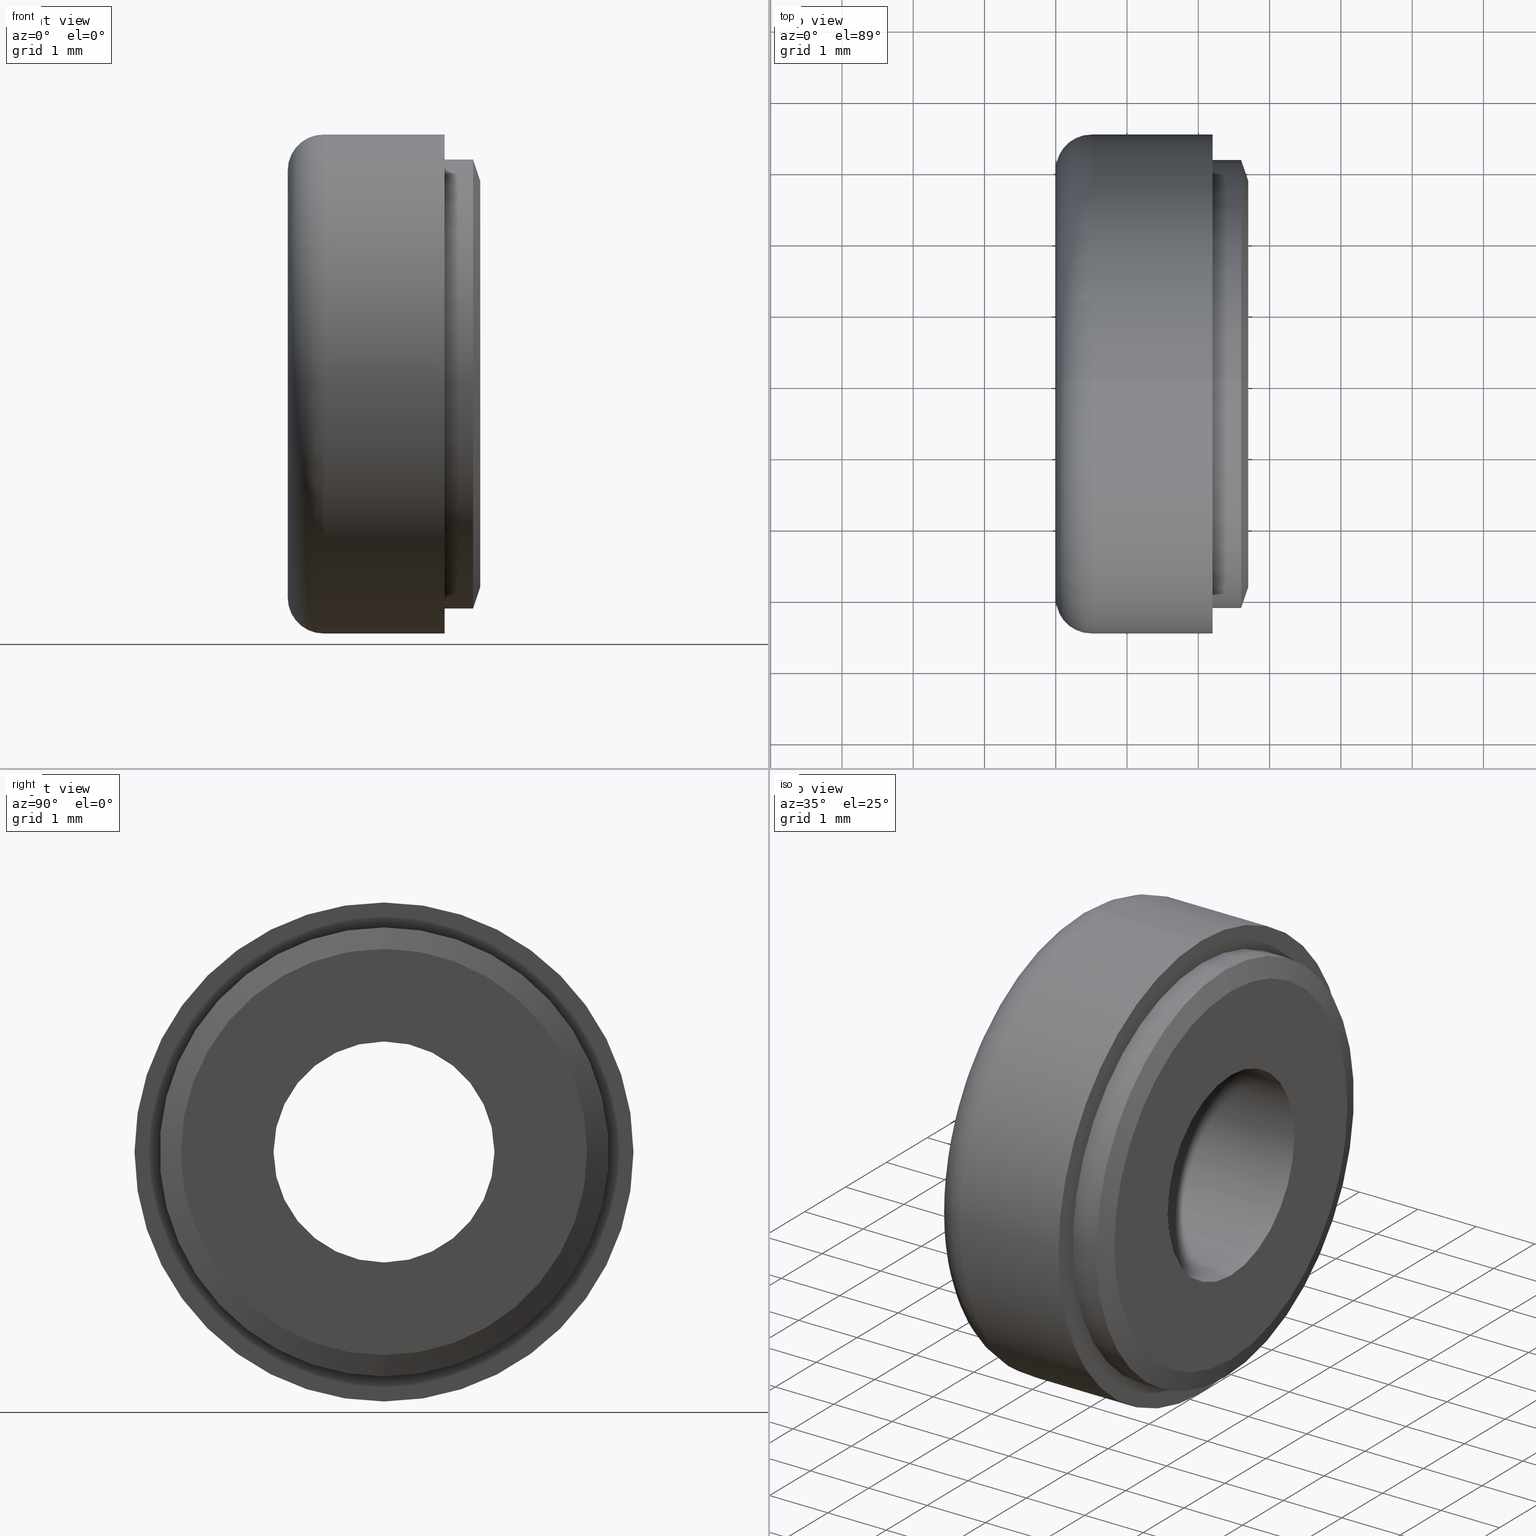
[diagram: canonical four-view strip — front | top / right | iso, engineering-drawing reading convention]
A machine part, canonical four-view strip (front | top / right | iso — engineering-drawing reading convention). The complete STEP part file that produces these views, byte-faithful:
ISO-10303-21;
HEADER;
FILE_DESCRIPTION (( 'STEP AP214' ),
    '1' );
FILE_NAME ('TL_421_M3.STEP',
    '2016-01-25T00:41:06',
    ( '' ),
    ( '' ),
    'SwSTEP 2.0',
    'SolidWorks 2015',
    '' );
FILE_SCHEMA (( 'AUTOMOTIVE_DESIGN' ));
ENDSEC;

DATA;
#1 = APPLICATION_CONTEXT ( 'automotive_design' ) ;
#2 = FACE_OUTER_BOUND ( 'NONE', #348, .T. ) ;
#3 = EDGE_CURVE ( 'NONE', #192, #632, #313, .T. ) ;
#4 = EDGE_CURVE ( 'NONE', #118, #221, #40, .T. ) ;
#5 = EDGE_LOOP ( 'NONE', ( #64, #252, #193, #17 ) ) ;
#6 = AXIS2_PLACEMENT_3D ( 'NONE', #727, #172, #646 ) ;
#7 = CARTESIAN_POINT ( 'NONE',  ( 2.200000000000000200, 4.286263797015736600E-016, -3.500000000000000000 ) ) ;
#8 = EDGE_LOOP ( 'NONE', ( #415, #104 ) ) ;
#9 = FILL_AREA_STYLE_COLOUR ( '', #62 ) ;
#10 = PLANE ( 'NONE',  #467 ) ;
#11 = DIRECTION ( 'NONE',  ( -1.000000000000000000, -0.0000000000000000000, -0.0000000000000000000 ) ) ;
#12 = FACE_OUTER_BOUND ( 'NONE', #285, .T. ) ;
#13 = PRESENTATION_LAYER_ASSIGNMENT (  '', '', ( #709 ) ) ;
#14 = CARTESIAN_POINT ( 'NONE',  ( -0.1100000000000000700, 0.0000000000000000000, 0.0000000000000000000 ) ) ;
#15 = EDGE_LOOP ( 'NONE', ( #245, #140 ) ) ;
#16 = FACE_OUTER_BOUND ( 'NONE', #22, .T. ) ;
#17 = ORIENTED_EDGE ( 'NONE', *, *, #532, .F. ) ;
#18 = ORIENTED_EDGE ( 'NONE', *, *, #687, .F. ) ;
#19 = CARTESIAN_POINT ( 'NONE',  ( 0.0000000000000000000, 0.0000000000000000000, 0.0000000000000000000 ) ) ;
#20 = PRODUCT_RELATED_PRODUCT_CATEGORY ( 'part', '', ( #429 ) ) ;
#21 = CARTESIAN_POINT ( 'NONE',  ( 2.200000000000000200, 0.0000000000000000000, 0.0000000000000000000 ) ) ;
#22 = EDGE_LOOP ( 'NONE', ( #485, #431, #614, #658 ) ) ;
#23 = DIRECTION ( 'NONE',  ( 0.0000000000000000000, 0.0000000000000000000, 1.000000000000000000 ) ) ;
#24 = DIRECTION ( 'NONE',  ( 0.0000000000000000000, 0.0000000000000000000, 1.000000000000000000 ) ) ;
#25 = AXIS2_PLACEMENT_3D ( 'NONE', #452, #110, #609 ) ;
#26 = ORIENTED_EDGE ( 'NONE', *, *, #599, .F. ) ;
#27 = CARTESIAN_POINT ( 'NONE',  ( 2.168404344971008900E-016, 0.0000000000000000000, 0.0000000000000000000 ) ) ;
#28 = EDGE_CURVE ( 'NONE', #357, #106, #135, .T. ) ;
#29 = ADVANCED_FACE ( 'NONE', ( #623 ), #287, .T. ) ;
#30 = FILL_AREA_STYLE_COLOUR ( '', #471 ) ;
#31 = ADVANCED_FACE ( 'NONE', ( #332 ), #43, .T. ) ;
#32 = CARTESIAN_POINT ( 'NONE',  ( 2.200000000000000600, 1.898202538678397700E-016, -1.550000000000000300 ) ) ;
#33 = FACE_BOUND ( 'NONE', #337, .T. ) ;
#34 = MECHANICAL_DESIGN_GEOMETRIC_PRESENTATION_REPRESENTATION (  '', ( #697 ), #75 ) ;
#35 = ORIENTED_EDGE ( 'NONE', *, *, #456, .F. ) ;
#36 = ADVANCED_FACE ( 'NONE', ( #16 ), #262, .F. ) ;
#37 = EDGE_LOOP ( 'NONE', ( #238, #411, #321, #681 ) ) ;
#38 = EDGE_CURVE ( 'NONE', #630, #434, #161, .T. ) ;
#39 = AXIS2_PLACEMENT_3D ( 'NONE', #676, #168, #260 ) ;
#40 = LINE ( 'NONE', #475, #663 ) ;
#41 = ORIENTED_EDGE ( 'NONE', *, *, #342, .T. ) ;
#42 = ORIENTED_EDGE ( 'NONE', *, *, #700, .T. ) ;
#43 = TOROIDAL_SURFACE ( 'NONE', #430, 3.000000000000000000, 0.5000000000000000000 ) ;
#44 = CIRCLE ( 'NONE', #568, 2.999999999999999600 ) ;
#45 = FILL_AREA_STYLE ('',( #378 ) ) ;
#46 =( NAMED_UNIT ( * ) SI_UNIT ( $, .STERADIAN. ) SOLID_ANGLE_UNIT ( ) );
#47 = MECHANICAL_DESIGN_GEOMETRIC_PRESENTATION_REPRESENTATION (  '', ( #709 ), #88 ) ;
#48 = ORIENTED_EDGE ( 'NONE', *, *, #340, .F. ) ;
#49 = FACE_OUTER_BOUND ( 'NONE', #463, .T. ) ;
#50 =( LENGTH_UNIT ( ) NAMED_UNIT ( * ) SI_UNIT ( .MILLI., .METRE. ) );
#51 = SHAPE_REPRESENTATION ( 'washer', ( #648 ), #601 ) ;
#52 = UNCERTAINTY_MEASURE_WITH_UNIT (LENGTH_MEASURE( 1.000000000000000100E-005 ), #661, 'distance_accuracy_value', 'NONE');
#53 = APPLICATION_CONTEXT ( 'automotive_design' ) ;
#54 = DIRECTION ( 'NONE',  ( 1.000000000000000000, 0.0000000000000000000, 0.0000000000000000000 ) ) ;
#55 = EDGE_LOOP ( 'NONE', ( #26, #42, #666, #472 ) ) ;
#56 =( REPRESENTATION_RELATIONSHIP ('NONE','NONE', #339, #351 ) REPRESENTATION_RELATIONSHIP_WITH_TRANSFORMATION ( #80 )SHAPE_REPRESENTATION_RELATIONSHIP( ) );
#57 = PRODUCT_DEFINITION_FORMATION_WITH_SPECIFIED_SOURCE ( 'ANY', '', #369, .NOT_KNOWN. ) ;
#58 = UNCERTAINTY_MEASURE_WITH_UNIT (LENGTH_MEASURE( 1.000000000000000100E-005 ), #542, 'distance_accuracy_value', 'NONE');
#59 = CARTESIAN_POINT ( 'NONE',  ( -0.1100000000000000700, 0.0000000000000000000, 2.999999999999999600 ) ) ;
#60 = CIRCLE ( 'NONE', #384, 1.600000000000000100 ) ;
#61 = DIRECTION ( 'NONE',  ( -1.000000000000000000, -0.0000000000000000000, -0.0000000000000000000 ) ) ;
#62 = COLOUR_RGB ( '',0.7921568627450980000, 0.8196078431372548800, 0.9333333333333333500 ) ;
#63 = DIRECTION ( 'NONE',  ( 0.0000000000000000000, 0.0000000000000000000, -1.000000000000000000 ) ) ;
#64 = ORIENTED_EDGE ( 'NONE', *, *, #566, .F. ) ;
#65 = CARTESIAN_POINT ( 'NONE',  ( 0.0000000000000000000, 3.980102097228897700E-016, 3.000000000000000000 ) ) ;
#66 = ORIENTED_EDGE ( 'NONE', *, *, #451, .T. ) ;
#67 = PRODUCT_DEFINITION_SHAPE ( 'NONE', 'NONE',  #593 ) ;
#68 = CARTESIAN_POINT ( 'NONE',  ( 0.5000000000000000000, 0.0000000000000000000, -3.000000000000000000 ) ) ;
#69 = ORIENTED_EDGE ( 'NONE', *, *, #38, .F. ) ;
#70 = FILL_AREA_STYLE ('',( #9 ) ) ;
#71 = LINE ( 'NONE', #408, #320 ) ;
#72 = ORIENTED_EDGE ( 'NONE', *, *, #154, .T. ) ;
#73 = DIRECTION ( 'NONE',  ( 0.0000000000000000000, 0.0000000000000000000, -1.000000000000000000 ) ) ;
#74 = EDGE_LOOP ( 'NONE', ( #66, #579 ) ) ;
#75 =( GEOMETRIC_REPRESENTATION_CONTEXT ( 3 ) GLOBAL_UNCERTAINTY_ASSIGNED_CONTEXT ( ( #58 ) ) GLOBAL_UNIT_ASSIGNED_CONTEXT ( ( #542, #208, #597 ) ) REPRESENTATION_CONTEXT ( 'NONE', 'WORKASPACE' ) );
#76 = CARTESIAN_POINT ( 'NONE',  ( -0.1100000000000000700, 0.0000000000000000000, 1.550000000000000300 ) ) ;
#77 = CARTESIAN_POINT ( 'NONE',  ( 2.200000000000000600, 3.490243377569956600E-016, -2.850000000000000100 ) ) ;
#78 = DIRECTION ( 'NONE',  ( -1.000000000000000000, -0.0000000000000000000, -0.0000000000000000000 ) ) ;
#79 = AXIS2_PLACEMENT_3D ( 'NONE', #21, #175, #234 ) ;
#80 = ITEM_DEFINED_TRANSFORMATION ( 'NONE', 'NONE', #410,  #648 ) ;
#81 = FACE_OUTER_BOUND ( 'NONE', #684, .T. ) ;
#82 = FACE_BOUND ( 'NONE', #300, .T. ) ;
#83 = EDGE_CURVE ( 'NONE', #96, #198, #409, .T. ) ;
#84 = ORIENTED_EDGE ( 'NONE', *, *, #166, .F. ) ;
#85 = DIRECTION ( 'NONE',  ( 0.0000000000000000000, 0.0000000000000000000, 1.000000000000000000 ) ) ;
#86 = ADVANCED_FACE ( 'NONE', ( #379 ), #153, .F. ) ;
#87 = EDGE_LOOP ( 'NONE', ( #624, #611 ) ) ;
#88 =( GEOMETRIC_REPRESENTATION_CONTEXT ( 3 ) GLOBAL_UNCERTAINTY_ASSIGNED_CONTEXT ( ( #484 ) ) GLOBAL_UNIT_ASSIGNED_CONTEXT ( ( #126, #507, #577 ) ) REPRESENTATION_CONTEXT ( 'NONE', 'WORKASPACE' ) );
#89 = VECTOR ( 'NONE', #236, 1000.000000000000000 ) ;
#90 = PRODUCT_DEFINITION_CONTEXT ( 'detailed design', #277, 'design' ) ;
#91 = DIRECTION ( 'NONE',  ( 0.0000000000000000000, 0.0000000000000000000, 1.000000000000000000 ) ) ;
#92 = DIRECTION ( 'NONE',  ( -1.000000000000000000, -0.0000000000000000000, -0.0000000000000000000 ) ) ;
#93 = ADVANCED_FACE ( 'NONE', ( #377 ), #432, .T. ) ;
#94 = ORIENTED_EDGE ( 'NONE', *, *, #28, .F. ) ;
#95 = SHAPE_DEFINITION_REPRESENTATION ( #67, #51 ) ;
#96 = VERTEX_POINT ( 'NONE', #32 ) ;
#97 = CLOSED_SHELL ( 'NONE', ( #583, #310, #29, #36, #531, #86, #368, #303, #149, #588, #640 ) ) ;
#98 = CIRCLE ( 'NONE', #164, 3.000000000000000000 ) ;
#99 = PRODUCT_RELATED_PRODUCT_CATEGORY ( 'part', '', ( #369 ) ) ;
#100 = FACE_OUTER_BOUND ( 'NONE', #580, .T. ) ;
#101 = DIRECTION ( 'NONE',  ( 0.0000000000000000000, 0.0000000000000000000, 1.000000000000000000 ) ) ;
#102 = EDGE_CURVE ( 'NONE', #691, #178, #292, .T. ) ;
#103 = AXIS2_PLACEMENT_3D ( 'NONE', #298, #516, #511 ) ;
#104 = ORIENTED_EDGE ( 'NONE', *, *, #705, .T. ) ;
#105 = SURFACE_SIDE_STYLE ('',( #562 ) ) ;
#106 = VERTEX_POINT ( 'NONE', #683 ) ;
#107 = CYLINDRICAL_SURFACE ( 'NONE', #103, 3.000000000000000000 ) ;
#108 = ORIENTED_EDGE ( 'NONE', *, *, #405, .T. ) ;
#109 = APPLICATION_CONTEXT ( 'automotive_design' ) ;
#110 = DIRECTION ( 'NONE',  ( -1.000000000000000000, -0.0000000000000000000, -0.0000000000000000000 ) ) ;
#111 = VERTEX_POINT ( 'NONE', #112 ) ;
#112 = CARTESIAN_POINT ( 'NONE',  ( 2.100000000000001000, 3.857637417314162700E-016, -3.149999999999999900 ) ) ;
#113 = DIRECTION ( 'NONE',  ( 0.0000000000000000000, 0.0000000000000000000, 1.000000000000000000 ) ) ;
#114 =( GEOMETRIC_REPRESENTATION_CONTEXT ( 3 ) GLOBAL_UNCERTAINTY_ASSIGNED_CONTEXT ( ( #52 ) ) GLOBAL_UNIT_ASSIGNED_CONTEXT ( ( #661, #317, #46 ) ) REPRESENTATION_CONTEXT ( 'NONE', 'WORKASPACE' ) );
#115 = EDGE_LOOP ( 'NONE', ( #641, #643, #371, #84 ) ) ;
#116 = CARTESIAN_POINT ( 'NONE',  ( 0.0000000000000000000, 0.0000000000000000000, 0.0000000000000000000 ) ) ;
#117 = ORIENTED_EDGE ( 'NONE', *, *, #397, .F. ) ;
#118 = VERTEX_POINT ( 'NONE', #195 ) ;
#119 = EDGE_LOOP ( 'NONE', ( #274, #541, #530, #336 ) ) ;
#120 = LINE ( 'NONE', #133, #703 ) ;
#121 = CARTESIAN_POINT ( 'NONE',  ( 0.5000000000000000000, 1.959434878635765200E-016, -1.600000000000000100 ) ) ;
#122 = VECTOR ( 'NONE', #590, 1000.000000000000000 ) ;
#123 = AXIS2_PLACEMENT_3D ( 'NONE', #441, #521, #334 ) ;
#124 = DIRECTION ( 'NONE',  ( 0.0000000000000000000, 0.0000000000000000000, -1.000000000000000000 ) ) ;
#125 = DIRECTION ( 'NONE',  ( 0.0000000000000000000, 0.0000000000000000000, 1.000000000000000000 ) ) ;
#126 =( LENGTH_UNIT ( ) NAMED_UNIT ( * ) SI_UNIT ( .MILLI., .METRE. ) );
#127 = DIRECTION ( 'NONE',  ( 1.000000000000000000, 0.0000000000000000000, 0.0000000000000000000 ) ) ;
#128 = PLANE ( 'NONE',  #143 ) ;
#129 = VECTOR ( 'NONE', #631, 1000.000000000000000 ) ;
#130 = AXIS2_PLACEMENT_3D ( 'NONE', #589, #61, #125 ) ;
#131 = ORIENTED_EDGE ( 'NONE', *, *, #102, .T. ) ;
#132 = CARTESIAN_POINT ( 'NONE',  ( 2.200000000000000600, 0.0000000000000000000, 0.0000000000000000000 ) ) ;
#133 = CARTESIAN_POINT ( 'NONE',  ( 2.200000000000000200, 3.673940397442059900E-016, -3.000000000000000000 ) ) ;
#134 = DIRECTION ( 'NONE',  ( 0.0000000000000000000, 0.0000000000000000000, 1.000000000000000000 ) ) ;
#135 = CIRCLE ( 'NONE', #502, 3.000000000000000000 ) ;
#136 = FACE_OUTER_BOUND ( 'NONE', #664, .T. ) ;
#137 = PRODUCT_DEFINITION_FORMATION_WITH_SPECIFIED_SOURCE ( 'ANY', '', #311, .NOT_KNOWN. ) ;
#138 = UNCERTAINTY_MEASURE_WITH_UNIT (LENGTH_MEASURE( 1.000000000000000100E-005 ), #267, 'distance_accuracy_value', 'NONE');
#139 = PRODUCT_DEFINITION_CONTEXT ( 'detailed design', #606, 'design' ) ;
#140 = ORIENTED_EDGE ( 'NONE', *, *, #487, .F. ) ;
#141 = CARTESIAN_POINT ( 'NONE',  ( 0.0000000000000000000, 0.0000000000000000000, 0.0000000000000000000 ) ) ;
#142 = ORIENTED_EDGE ( 'NONE', *, *, #405, .F. ) ;
#143 = AXIS2_PLACEMENT_3D ( 'NONE', #578, #329, #225 ) ;
#144 = ADVANCED_FACE ( 'NONE', ( #2 ), #555, .F. ) ;
#145 = ORIENTED_EDGE ( 'NONE', *, *, #156, .F. ) ;
#146 = CIRCLE ( 'NONE', #636, 3.149999999999999900 ) ;
#147 = DIRECTION ( 'NONE',  ( 0.0000000000000000000, 0.0000000000000000000, -1.000000000000000000 ) ) ;
#148 = ORIENTED_EDGE ( 'NONE', *, *, #599, .T. ) ;
#149 = ADVANCED_FACE ( 'NONE', ( #136 ), #257, .T. ) ;
#150 =( LENGTH_UNIT ( ) NAMED_UNIT ( * ) SI_UNIT ( .MILLI., .METRE. ) );
#151 = DIRECTION ( 'NONE',  ( 0.0000000000000000000, 0.0000000000000000000, -1.000000000000000000 ) ) ;
#152 = STYLED_ITEM ( 'NONE', ( #182 ), #721 ) ;
#153 = CYLINDRICAL_SURFACE ( 'NONE', #605, 1.550000000000000300 ) ;
#154 = EDGE_CURVE ( 'NONE', #649, #272, #414, .T. ) ;
#155 = AXIS2_PLACEMENT_3D ( 'NONE', #650, #173, #134 ) ;
#156 = EDGE_CURVE ( 'NONE', #185, #357, #715, .T. ) ;
#157 = DIRECTION ( 'NONE',  ( -0.3162277660168362200, 0.0000000000000000000, 0.9486832980505144300 ) ) ;
#158 = PRODUCT_DEFINITION_CONTEXT ( 'detailed design', #109, 'design' ) ;
#159 = ORIENTED_EDGE ( 'NONE', *, *, #258, .F. ) ;
#160 = FACE_OUTER_BOUND ( 'NONE', #55, .T. ) ;
#161 = CIRCLE ( 'NONE', #458, 3.000000000000000000 ) ;
#162 = APPLICATION_PROTOCOL_DEFINITION ( 'draft international standard', 'automotive_design', 1998, #325 ) ;
#163 = FILL_AREA_STYLE ('',( #486 ) ) ;
#164 = AXIS2_PLACEMENT_3D ( 'NONE', #464, #191, #581 ) ;
#165 = CARTESIAN_POINT ( 'NONE',  ( 0.0000000000000000000, 0.0000000000000000000, 2.999999999999999600 ) ) ;
#166 = EDGE_CURVE ( 'NONE', #632, #691, #572, .T. ) ;
#167 = UNCERTAINTY_MEASURE_WITH_UNIT (LENGTH_MEASURE( 1.000000000000000100E-005 ), #150, 'distance_accuracy_value', 'NONE');
#168 = DIRECTION ( 'NONE',  ( -1.000000000000000000, -0.0000000000000000000, -0.0000000000000000000 ) ) ;
#169 = CARTESIAN_POINT ( 'NONE',  ( 0.0000000000000000000, 0.0000000000000000000, 0.0000000000000000000 ) ) ;
#170 = SURFACE_STYLE_USAGE ( .BOTH. , #613 ) ;
#171 = SURFACE_STYLE_FILL_AREA ( #448 ) ;
#172 = DIRECTION ( 'NONE',  ( -1.000000000000000000, 0.0000000000000000000, 0.0000000000000000000 ) ) ;
#173 = DIRECTION ( 'NONE',  ( -1.000000000000000000, -0.0000000000000000000, -0.0000000000000000000 ) ) ;
#174 = APPLICATION_PROTOCOL_DEFINITION ( 'draft international standard', 'automotive_design', 1998, #1 ) ;
#175 = DIRECTION ( 'NONE',  ( 1.000000000000000000, 0.0000000000000000000, 0.0000000000000000000 ) ) ;
#176 = PRODUCT_RELATED_PRODUCT_CATEGORY ( 'part', '', ( #311 ) ) ;
#177 = DIRECTION ( 'NONE',  ( 1.000000000000000000, 0.0000000000000000000, 0.0000000000000000000 ) ) ;
#178 = VERTEX_POINT ( 'NONE', #222 ) ;
#179 = AXIS2_PLACEMENT_3D ( 'NONE', #68, #327, #73 ) ;
#180 = EDGE_CURVE ( 'NONE', #111, #632, #704, .T. ) ;
#181 = DIRECTION ( 'NONE',  ( 0.0000000000000000000, 0.0000000000000000000, 1.000000000000000000 ) ) ;
#182 = PRESENTATION_STYLE_ASSIGNMENT (( #209 ) ) ;
#183 = FACE_BOUND ( 'NONE', #552, .T. ) ;
#184 = CARTESIAN_POINT ( 'NONE',  ( 2.200000000000000200, 4.286263797015736600E-016, -3.500000000000000000 ) ) ;
#185 = VERTEX_POINT ( 'NONE', #251 ) ;
#186 = PRESENTATION_LAYER_ASSIGNMENT (  '', '', ( #152 ) ) ;
#187 = DIRECTION ( 'NONE',  ( -1.000000000000000000, -0.0000000000000000000, -0.0000000000000000000 ) ) ;
#188 = STYLED_ITEM ( 'NONE', ( #505 ), #264 ) ;
#189 = DIRECTION ( 'NONE',  ( -1.000000000000000000, -0.0000000000000000000, -0.0000000000000000000 ) ) ;
#190 = CIRCLE ( 'NONE', #490, 2.850000000000000100 ) ;
#191 = DIRECTION ( 'NONE',  ( 1.000000000000000000, 0.0000000000000000000, 0.0000000000000000000 ) ) ;
#192 = VERTEX_POINT ( 'NONE', #604 ) ;
#193 = ORIENTED_EDGE ( 'NONE', *, *, #156, .T. ) ;
#194 = EDGE_CURVE ( 'NONE', #732, #272, #396, .T. ) ;
#195 = CARTESIAN_POINT ( 'NONE',  ( 0.5000000000000000000, 0.0000000000000000000, 1.600000000000000100 ) ) ;
#196 = CARTESIAN_POINT ( 'NONE',  ( 2.200000000000000200, 0.0000000000000000000, 0.0000000000000000000 ) ) ;
#197 = LINE ( 'NONE', #184, #625 ) ;
#198 = VERTEX_POINT ( 'NONE', #686 ) ;
#199 =( NAMED_UNIT ( * ) SI_UNIT ( $, .STERADIAN. ) SOLID_ANGLE_UNIT ( ) );
#200 = ADVANCED_FACE ( 'NONE', ( #100 ), #223, .T. ) ;
#201 = EDGE_LOOP ( 'NONE', ( #594, #571 ) ) ;
#202 = CIRCLE ( 'NONE', #306, 1.550000000000000000 ) ;
#203 = ORIENTED_EDGE ( 'NONE', *, *, #567, .F. ) ;
#204 = SURFACE_STYLE_FILL_AREA ( #70 ) ;
#205 = ORIENTED_EDGE ( 'NONE', *, *, #426, .T. ) ;
#206 = AXIS2_PLACEMENT_3D ( 'NONE', #457, #54, #399 ) ;
#207 = PRODUCT_DEFINITION_SHAPE ( 'NONE', 'NONE',  #734 ) ;
#208 =( NAMED_UNIT ( * ) PLANE_ANGLE_UNIT ( ) SI_UNIT ( $, .RADIAN. ) );
#209 = SURFACE_STYLE_USAGE ( .BOTH. , #545 ) ;
#210 = PRODUCT_DEFINITION_SHAPE ( 'NONE', 'NONE',  #554 ) ;
#211 = VECTOR ( 'NONE', #189, 1000.000000000000000 ) ;
#212 = DIRECTION ( 'NONE',  ( -1.000000000000000000, -0.0000000000000000000, -0.0000000000000000000 ) ) ;
#213 = DIRECTION ( 'NONE',  ( -1.000000000000000000, -0.0000000000000000000, -0.0000000000000000000 ) ) ;
#214 = DIRECTION ( 'NONE',  ( 1.000000000000000000, 0.0000000000000000000, 0.0000000000000000000 ) ) ;
#215 = MECHANICAL_DESIGN_GEOMETRIC_PRESENTATION_REPRESENTATION (  '', ( #152 ), #254 ) ;
#216 = PRODUCT_CONTEXT ( 'NONE', #1, 'mechanical' ) ;
#217 = CARTESIAN_POINT ( 'NONE',  ( 2.200000000000000200, 0.0000000000000000000, 0.0000000000000000000 ) ) ;
#218 = EDGE_CURVE ( 'NONE', #526, #228, #275, .T. ) ;
#219 = CONTEXT_DEPENDENT_SHAPE_REPRESENTATION ( #328, #465 ) ;
#220 = LINE ( 'NONE', #77, #654 ) ;
#221 = VERTEX_POINT ( 'NONE', #382 ) ;
#222 = CARTESIAN_POINT ( 'NONE',  ( 1.700000000000000000, 3.857637417314162700E-016, -3.149999999999999900 ) ) ;
#223 = CYLINDRICAL_SURFACE ( 'NONE', #155, 3.500000000000000000 ) ;
#224 = DIRECTION ( 'NONE',  ( -1.000000000000000000, -0.0000000000000000000, -0.0000000000000000000 ) ) ;
#225 = DIRECTION ( 'NONE',  ( -0.0000000000000000000, 0.0000000000000000000, 1.000000000000000000 ) ) ;
#226 = CARTESIAN_POINT ( 'NONE',  ( 0.5000000000000000000, 0.0000000000000000000, 0.0000000000000000000 ) ) ;
#227 = DIRECTION ( 'NONE',  ( 0.0000000000000000000, 0.0000000000000000000, -1.000000000000000000 ) ) ;
#228 = VERTEX_POINT ( 'NONE', #335 ) ;
#229 = DIRECTION ( 'NONE',  ( -1.000000000000000000, -0.0000000000000000000, -0.0000000000000000000 ) ) ;
#230 = EDGE_CURVE ( 'NONE', #518, #185, #375, .T. ) ;
#231 = PLANE ( 'NONE',  #295 ) ;
#232 = CIRCLE ( 'NONE', #243, 0.5000000000000000000 ) ;
#233 = AXIS2_PLACEMENT_3D ( 'NONE', #473, #689, #23 ) ;
#234 = DIRECTION ( 'NONE',  ( 0.0000000000000000000, 0.0000000000000000000, -1.000000000000000000 ) ) ;
#235 = CARTESIAN_POINT ( 'NONE',  ( 1.700000000000000000, 0.0000000000000000000, 0.0000000000000000000 ) ) ;
#236 = DIRECTION ( 'NONE',  ( -1.000000000000000000, -0.0000000000000000000, -0.0000000000000000000 ) ) ;
#237 = SHAPE_DEFINITION_REPRESENTATION ( #210, #351 ) ;
#238 = ORIENTED_EDGE ( 'NONE', *, *, #576, .F. ) ;
#239 = VECTOR ( 'NONE', #520, 1000.000000000000000 ) ;
#240 = CARTESIAN_POINT ( 'NONE',  ( 2.100000000000001000, 0.0000000000000000000, 0.0000000000000000000 ) ) ;
#241 = FACE_OUTER_BOUND ( 'NONE', #447, .T. ) ;
#242 = CARTESIAN_POINT ( 'NONE',  ( 1.700000000000000000, 3.673940397442059400E-016, -2.999999999999999600 ) ) ;
#243 = AXIS2_PLACEMENT_3D ( 'NONE', #420, #341, #517 ) ;
#244 = ADVANCED_FACE ( 'NONE', ( #241 ), #354, .F. ) ;
#245 = ORIENTED_EDGE ( 'NONE', *, *, #381, .F. ) ;
#246 = CIRCLE ( 'NONE', #206, 3.500000000000000000 ) ;
#247 = CARTESIAN_POINT ( 'NONE',  ( 1.700000000000000000, 0.0000000000000000000, 3.149999999999999900 ) ) ;
#248 = DIRECTION ( 'NONE',  ( 1.000000000000000000, 0.0000000000000000000, 0.0000000000000000000 ) ) ;
#249 = ADVANCED_FACE ( 'NONE', ( #82, #656 ), #231, .T. ) ;
#250 = DIRECTION ( 'NONE',  ( 0.0000000000000000000, 0.0000000000000000000, -1.000000000000000000 ) ) ;
#251 = CARTESIAN_POINT ( 'NONE',  ( 2.200000000000000200, 0.0000000000000000000, 3.000000000000000000 ) ) ;
#252 = ORIENTED_EDGE ( 'NONE', *, *, #230, .T. ) ;
#253 = ADVANCED_FACE ( 'NONE', ( #523 ), #481, .F. ) ;
#254 =( GEOMETRIC_REPRESENTATION_CONTEXT ( 3 ) GLOBAL_UNCERTAINTY_ASSIGNED_CONTEXT ( ( #138 ) ) GLOBAL_UNIT_ASSIGNED_CONTEXT ( ( #267, #318, #730 ) ) REPRESENTATION_CONTEXT ( 'NONE', 'WORKASPACE' ) );
#255 = ORIENTED_EDGE ( 'NONE', *, *, #639, .T. ) ;
#256 = LINE ( 'NONE', #575, #395 ) ;
#257 = CYLINDRICAL_SURFACE ( 'NONE', #39, 3.149999999999999900 ) ;
#258 = EDGE_CURVE ( 'NONE', #425, #118, #635, .T. ) ;
#259 = AXIS2_PLACEMENT_3D ( 'NONE', #349, #345, #350 ) ;
#260 = DIRECTION ( 'NONE',  ( 0.0000000000000000000, 0.0000000000000000000, 1.000000000000000000 ) ) ;
#261 = AXIS2_PLACEMENT_3D ( 'NONE', #312, #716, #101 ) ;
#262 = CYLINDRICAL_SURFACE ( 'NONE', #495, 1.550000000000000300 ) ;
#263 = ORIENTED_EDGE ( 'NONE', *, *, #498, .F. ) ;
#264 = MANIFOLD_SOLID_BREP ( '��� - �����o��1', #492 ) ;
#265 = CYLINDRICAL_SURFACE ( 'NONE', #720, 3.149999999999999900 ) ;
#266 = EDGE_CURVE ( 'NONE', #198, #96, #582, .T. ) ;
#267 =( LENGTH_UNIT ( ) NAMED_UNIT ( * ) SI_UNIT ( .MILLI., .METRE. ) );
#268 = AXIS2_PLACEMENT_3D ( 'NONE', #512, #559, #288 ) ;
#269 = CARTESIAN_POINT ( 'NONE',  ( 0.5000000000000000000, 0.0000000000000000000, 3.000000000000000000 ) ) ;
#270 = DIRECTION ( 'NONE',  ( 0.0000000000000000000, 0.0000000000000000000, 1.000000000000000000 ) ) ;
#271 = CARTESIAN_POINT ( 'NONE',  ( 0.4999999999999998900, 0.0000000000000000000, 0.0000000000000000000 ) ) ;
#272 = VERTEX_POINT ( 'NONE', #165 ) ;
#273 = DIRECTION ( 'NONE',  ( 0.0000000000000000000, 0.0000000000000000000, 1.000000000000000000 ) ) ;
#274 = ORIENTED_EDGE ( 'NONE', *, *, #381, .T. ) ;
#275 = CIRCLE ( 'NONE', #123, 1.550000000000000000 ) ;
#276 = DIRECTION ( 'NONE',  ( -1.000000000000000000, -0.0000000000000000000, -0.0000000000000000000 ) ) ;
#277 = APPLICATION_CONTEXT ( 'automotive_design' ) ;
#278 = CARTESIAN_POINT ( 'NONE',  ( 0.0000000000000000000, 0.0000000000000000000, -3.000000000000000000 ) ) ;
#279 = CARTESIAN_POINT ( 'NONE',  ( 0.0000000000000000000, 0.0000000000000000000, 0.0000000000000000000 ) ) ;
#280 = ORIENTED_EDGE ( 'NONE', *, *, #258, .T. ) ;
#281 = AXIS2_PLACEMENT_3D ( 'NONE', #226, #177, #63 ) ;
#282 = FACE_OUTER_BOUND ( 'NONE', #115, .T. ) ;
#283 = CARTESIAN_POINT ( 'NONE',  ( 0.5000000000000000000, 0.0000000000000000000, 3.500000000000000000 ) ) ;
#284 = DIRECTION ( 'NONE',  ( -1.000000000000000000, -0.0000000000000000000, -0.0000000000000000000 ) ) ;
#285 = EDGE_LOOP ( 'NONE', ( #477, #392 ) ) ;
#286 =( LENGTH_UNIT ( ) NAMED_UNIT ( * ) SI_UNIT ( .MILLI., .METRE. ) );
#287 = CONICAL_SURFACE ( 'NONE', #261, 2.850000000000000100, 1.249045772398256200 ) ;
#288 = DIRECTION ( 'NONE',  ( 0.0000000000000000000, 0.0000000000000000000, -1.000000000000000000 ) ) ;
#289 = VECTOR ( 'NONE', #157, 999.9999999999998900 ) ;
#290 = ORIENTED_EDGE ( 'NONE', *, *, #439, .F. ) ;
#291 = ORIENTED_EDGE ( 'NONE', *, *, #4, .T. ) ;
#292 = CIRCLE ( 'NONE', #537, 3.149999999999999900 ) ;
#293 = CARTESIAN_POINT ( 'NONE',  ( 2.200000000000000200, 0.0000000000000000000, 3.500000000000000000 ) ) ;
#294 =( NAMED_UNIT ( * ) PLANE_ANGLE_UNIT ( ) SI_UNIT ( $, .RADIAN. ) );
#295 = AXIS2_PLACEMENT_3D ( 'NONE', #628, #634, #124 ) ;
#296 = VERTEX_POINT ( 'NONE', #356 ) ;
#297 = CARTESIAN_POINT ( 'NONE',  ( 0.5000000000000000000, 0.0000000000000000000, 0.0000000000000000000 ) ) ;
#298 = CARTESIAN_POINT ( 'NONE',  ( 2.200000000000000200, 0.0000000000000000000, 0.0000000000000000000 ) ) ;
#299 = EDGE_LOOP ( 'NONE', ( #574, #538 ) ) ;
#300 = EDGE_LOOP ( 'NONE', ( #695, #280 ) ) ;
#301 = ORIENTED_EDGE ( 'NONE', *, *, #639, .F. ) ;
#302 = ADVANCED_BREP_SHAPE_REPRESENTATION ( '', ( #264, #648 ), #601 ) ;
#303 = ADVANCED_FACE ( 'NONE', ( #160 ), #423, .T. ) ;
#304 = EDGE_CURVE ( 'NONE', #192, #701, #564, .T. ) ;
#305 = DIRECTION ( 'NONE',  ( 1.000000000000000000, 0.0000000000000000000, 0.0000000000000000000 ) ) ;
#306 = AXIS2_PLACEMENT_3D ( 'NONE', #27, #421, #85 ) ;
#307 = CARTESIAN_POINT ( 'NONE',  ( 0.0000000000000000000, 0.0000000000000000000, 0.0000000000000000000 ) ) ;
#308 = CARTESIAN_POINT ( 'NONE',  ( 1.700000000000000000, 0.0000000000000000000, 0.0000000000000000000 ) ) ;
#309 = CIRCLE ( 'NONE', #618, 3.000000000000000000 ) ;
#310 = ADVANCED_FACE ( 'NONE', ( #282 ), #265, .T. ) ;
#311 = PRODUCT ( 'washer', 'washer', '', ( #216 ) ) ;
#312 = CARTESIAN_POINT ( 'NONE',  ( 2.200000000000000600, 0.0000000000000000000, 0.0000000000000000000 ) ) ;
#313 = LINE ( 'NONE', #718, #289 ) ;
#314 = DIRECTION ( 'NONE',  ( 0.0000000000000000000, 0.0000000000000000000, 1.000000000000000000 ) ) ;
#315 = AXIS2_PLACEMENT_3D ( 'NONE', #279, #224, #608 ) ;
#316 = EDGE_LOOP ( 'NONE', ( #729, #148, #509, #725 ) ) ;
#317 =( NAMED_UNIT ( * ) PLANE_ANGLE_UNIT ( ) SI_UNIT ( $, .RADIAN. ) );
#318 =( NAMED_UNIT ( * ) PLANE_ANGLE_UNIT ( ) SI_UNIT ( $, .RADIAN. ) );
#319 = SURFACE_STYLE_FILL_AREA ( #163 ) ;
#320 = VECTOR ( 'NONE', #229, 1000.000000000000000 ) ;
#321 = ORIENTED_EDGE ( 'NONE', *, *, #194, .T. ) ;
#322 = DIRECTION ( 'NONE',  ( 0.0000000000000000000, 0.0000000000000000000, 1.000000000000000000 ) ) ;
#323 = VERTEX_POINT ( 'NONE', #7 ) ;
#324 = DIRECTION ( 'NONE',  ( 0.0000000000000000000, 0.0000000000000000000, 1.000000000000000000 ) ) ;
#325 = APPLICATION_CONTEXT ( 'automotive_design' ) ;
#326 = AXIS2_PLACEMENT_3D ( 'NONE', #438, #113, #489 ) ;
#327 = DIRECTION ( 'NONE',  ( 0.0000000000000000000, -1.000000000000000000, 0.0000000000000000000 ) ) ;
#328 =( REPRESENTATION_RELATIONSHIP ('NONE','NONE', #339, #51 ) REPRESENTATION_RELATIONSHIP_WITH_TRANSFORMATION ( #679 )SHAPE_REPRESENTATION_RELATIONSHIP( ) );
#329 = DIRECTION ( 'NONE',  ( -1.000000000000000000, 0.0000000000000000000, -0.0000000000000000000 ) ) ;
#330 = AXIS2_PLACEMENT_3D ( 'NONE', #547, #508, #696 ) ;
#331 = SURFACE_SIDE_STYLE ('',( #171 ) ) ;
#332 = FACE_OUTER_BOUND ( 'NONE', #535, .T. ) ;
#333 = CIRCLE ( 'NONE', #343, 1.600000000000000100 ) ;
#334 = DIRECTION ( 'NONE',  ( 0.0000000000000000000, 0.0000000000000000000, 1.000000000000000000 ) ) ;
#335 = CARTESIAN_POINT ( 'NONE',  ( 2.168404344971008900E-016, 0.0000000000000000000, 1.550000000000000000 ) ) ;
#336 = ORIENTED_EDGE ( 'NONE', *, *, #194, .F. ) ;
#337 = EDGE_LOOP ( 'NONE', ( #459, #592 ) ) ;
#338 = CARTESIAN_POINT ( 'NONE',  ( 2.200000000000000600, 3.673940397442059900E-016, -2.850000000000000100 ) ) ;
#339 = SHAPE_REPRESENTATION ( 'TL_421_M3', ( #519, #370, #410 ), #443 ) ;
#340 = EDGE_CURVE ( 'NONE', #565, #221, #435, .T. ) ;
#341 = DIRECTION ( 'NONE',  ( 0.0000000000000000000, 1.000000000000000000, -1.224646799147353200E-016 ) ) ;
#342 = EDGE_CURVE ( 'NONE', #425, #565, #726, .T. ) ;
#343 = AXIS2_PLACEMENT_3D ( 'NONE', #19, #305, #710 ) ;
#344 = CIRCLE ( 'NONE', #437, 2.999999999999999600 ) ;
#345 = DIRECTION ( 'NONE',  ( -1.000000000000000000, 0.0000000000000000000, 0.0000000000000000000 ) ) ;
#346 = ORIENTED_EDGE ( 'NONE', *, *, #645, .F. ) ;
#347 = PLANE ( 'NONE',  #268 ) ;
#348 = EDGE_LOOP ( 'NONE', ( #159, #41, #18, #591 ) ) ;
#349 = CARTESIAN_POINT ( 'NONE',  ( 2.200000000000000200, 0.0000000000000000000, 0.0000000000000000000 ) ) ;
#350 = DIRECTION ( 'NONE',  ( 0.0000000000000000000, 0.0000000000000000000, 1.000000000000000000 ) ) ;
#351 = SHAPE_REPRESENTATION ( 'packing', ( #648 ), #114 ) ;
#352 = CONTEXT_DEPENDENT_SHAPE_REPRESENTATION ( #56, #207 ) ;
#353 = FACE_OUTER_BOUND ( 'NONE', #37, .T. ) ;
#354 = CYLINDRICAL_SURFACE ( 'NONE', #259, 1.600000000000000100 ) ;
#355 = CARTESIAN_POINT ( 'NONE',  ( 2.100000000000001000, 0.0000000000000000000, 3.149999999999999900 ) ) ;
#356 = CARTESIAN_POINT ( 'NONE',  ( 0.5000000000000000000, 4.286263797015736600E-016, -3.500000000000000000 ) ) ;
#357 = VERTEX_POINT ( 'NONE', #269 ) ;
#358 = EDGE_CURVE ( 'NONE', #632, #111, #146, .T. ) ;
#359 = CARTESIAN_POINT ( 'NONE',  ( -0.1100000000000000700, 0.0000000000000000000, 0.0000000000000000000 ) ) ;
#360 = ADVANCED_FACE ( 'NONE', ( #708 ), #107, .F. ) ;
#361 = AXIS2_PLACEMENT_3D ( 'NONE', #612, #690, #400 ) ;
#362 = CARTESIAN_POINT ( 'NONE',  ( 1.700000000000000000, 0.0000000000000000000, 2.999999999999999600 ) ) ;
#363 = DIRECTION ( 'NONE',  ( 0.0000000000000000000, 0.0000000000000000000, 1.000000000000000000 ) ) ;
#364 = LINE ( 'NONE', #76, #211 ) ;
#365 = ORIENTED_EDGE ( 'NONE', *, *, #566, .T. ) ;
#366 = DIRECTION ( 'NONE',  ( -1.000000000000000000, -0.0000000000000000000, -0.0000000000000000000 ) ) ;
#367 = CARTESIAN_POINT ( 'NONE',  ( 2.200000000000000200, 0.0000000000000000000, 3.000000000000000000 ) ) ;
#368 = ADVANCED_FACE ( 'NONE', ( #12, #404 ), #128, .F. ) ;
#369 = PRODUCT ( 'packing', 'packing', '', ( #436 ) ) ;
#370 = AXIS2_PLACEMENT_3D ( 'NONE', #169, #549, #600 ) ;
#371 = ORIENTED_EDGE ( 'NONE', *, *, #102, .F. ) ;
#372 = PRESENTATION_LAYER_ASSIGNMENT (  '', '', ( #697 ) ) ;
#373 = VERTEX_POINT ( 'NONE', #386 ) ;
#374 = FACE_OUTER_BOUND ( 'NONE', #394, .T. ) ;
#375 = CIRCLE ( 'NONE', #79, 3.000000000000000000 ) ;
#376 = AXIS2_PLACEMENT_3D ( 'NONE', #217, #284, #461 ) ;
#377 = FACE_OUTER_BOUND ( 'NONE', #550, .T. ) ;
#378 = FILL_AREA_STYLE_COLOUR ( '', #724 ) ;
#379 = FACE_OUTER_BOUND ( 'NONE', #626, .T. ) ;
#380 = CIRCLE ( 'NONE', #281, 3.500000000000000000 ) ;
#381 = EDGE_CURVE ( 'NONE', #732, #637, #543, .T. ) ;
#382 = CARTESIAN_POINT ( 'NONE',  ( 0.0000000000000000000, 0.0000000000000000000, 1.600000000000000100 ) ) ;
#383 = DIRECTION ( 'NONE',  ( 0.0000000000000000000, 0.0000000000000000000, 1.000000000000000000 ) ) ;
#384 = AXIS2_PLACEMENT_3D ( 'NONE', #424, #468, #147 ) ;
#385 = DIRECTION ( 'NONE',  ( 1.000000000000000000, 0.0000000000000000000, 0.0000000000000000000 ) ) ;
#386 = CARTESIAN_POINT ( 'NONE',  ( 2.200000000000000200, 0.0000000000000000000, 3.500000000000000000 ) ) ;
#387 = AXIS2_PLACEMENT_3D ( 'NONE', #501, #506, #544 ) ;
#388 = ORIENTED_EDGE ( 'NONE', *, *, #266, .F. ) ;
#389 = DIRECTION ( 'NONE',  ( -1.000000000000000000, -0.0000000000000000000, -0.0000000000000000000 ) ) ;
#390 = ORIENTED_EDGE ( 'NONE', *, *, #180, .T. ) ;
#391 = SHAPE_DEFINITION_REPRESENTATION ( #622, #339 ) ;
#392 = ORIENTED_EDGE ( 'NONE', *, *, #700, .F. ) ;
#393 = EDGE_CURVE ( 'NONE', #434, #296, #693, .T. ) ;
#394 = EDGE_LOOP ( 'NONE', ( #131, #482 ) ) ;
#395 = VECTOR ( 'NONE', #706, 1000.000000000000000 ) ;
#396 = LINE ( 'NONE', #59, #682 ) ;
#397 = EDGE_CURVE ( 'NONE', #373, #323, #246, .T. ) ;
#398 = CARTESIAN_POINT ( 'NONE',  ( 0.0000000000000000000, 0.0000000000000000000, 0.0000000000000000000 ) ) ;
#399 = DIRECTION ( 'NONE',  ( 0.0000000000000000000, 0.0000000000000000000, -1.000000000000000000 ) ) ;
#400 = DIRECTION ( 'NONE',  ( 0.0000000000000000000, 0.0000000000000000000, -1.000000000000000000 ) ) ;
#401 = DIRECTION ( 'NONE',  ( 0.0000000000000000000, 0.0000000000000000000, 1.000000000000000000 ) ) ;
#402 = CARTESIAN_POINT ( 'NONE',  ( 2.168404344971008900E-016, 1.898202538678397500E-016, -1.550000000000000000 ) ) ;
#403 = ORIENTED_EDGE ( 'NONE', *, *, #491, .T. ) ;
#404 = FACE_BOUND ( 'NONE', #201, .T. ) ;
#405 = EDGE_CURVE ( 'NONE', #373, #513, #529, .T. ) ;
#406 = ORIENTED_EDGE ( 'NONE', *, *, #456, .T. ) ;
#407 = CARTESIAN_POINT ( 'NONE',  ( 2.200000000000000600, 0.0000000000000000000, 0.0000000000000000000 ) ) ;
#408 = CARTESIAN_POINT ( 'NONE',  ( -0.1100000000000000700, 3.857637417314162700E-016, -3.149999999999999900 ) ) ;
#409 = CIRCLE ( 'NONE', #387, 1.550000000000000300 ) ;
#410 = AXIS2_PLACEMENT_3D ( 'NONE', #271, #322, #385 ) ;
#411 = ORIENTED_EDGE ( 'NONE', *, *, #487, .T. ) ;
#412 = CIRCLE ( 'NONE', #130, 3.149999999999999900 ) ;
#413 = DIRECTION ( 'NONE',  ( 0.0000000000000000000, 0.0000000000000000000, -1.000000000000000000 ) ) ;
#414 = CIRCLE ( 'NONE', #573, 2.999999999999999600 ) ;
#415 = ORIENTED_EDGE ( 'NONE', *, *, #397, .T. ) ;
#416 = PLANE ( 'NONE',  #662 ) ;
#417 = EDGE_CURVE ( 'NONE', #630, #513, #232, .T. ) ;
#418 = PRESENTATION_LAYER_ASSIGNMENT (  '', '', ( #188 ) ) ;
#419 = DIRECTION ( 'NONE',  ( -1.000000000000000000, -0.0000000000000000000, -0.0000000000000000000 ) ) ;
#420 = CARTESIAN_POINT ( 'NONE',  ( 0.5000000000000000000, 3.673940397442059900E-016, 3.000000000000000000 ) ) ;
#421 = DIRECTION ( 'NONE',  ( -1.000000000000000000, -0.0000000000000000000, -0.0000000000000000000 ) ) ;
#422 = PRESENTATION_STYLE_ASSIGNMENT (( #483 ) ) ;
#423 = CONICAL_SURFACE ( 'NONE', #558, 2.850000000000000100, 1.249045772398256200 ) ;
#424 = CARTESIAN_POINT ( 'NONE',  ( 0.5000000000000000000, 0.0000000000000000000, 0.0000000000000000000 ) ) ;
#425 = VERTEX_POINT ( 'NONE', #121 ) ;
#426 = EDGE_CURVE ( 'NONE', #198, #228, #364, .T. ) ;
#427 = AXIS2_PLACEMENT_3D ( 'NONE', #359, #419, #638 ) ;
#428 = DIRECTION ( 'NONE',  ( -1.000000000000000000, 0.0000000000000000000, 0.0000000000000000000 ) ) ;
#429 = PRODUCT ( 'TL_421_M3', 'TL_421_M3', '', ( #668 ) ) ;
#430 = AXIS2_PLACEMENT_3D ( 'NONE', #493, #214, #672 ) ;
#431 = ORIENTED_EDGE ( 'NONE', *, *, #595, .T. ) ;
#432 = CYLINDRICAL_SURFACE ( 'NONE', #652, 3.500000000000000000 ) ;
#433 = CARTESIAN_POINT ( 'NONE',  ( -0.1100000000000000700, 0.0000000000000000000, 3.149999999999999900 ) ) ;
#434 = VERTEX_POINT ( 'NONE', #278 ) ;
#435 = CIRCLE ( 'NONE', #688, 1.600000000000000100 ) ;
#436 = PRODUCT_CONTEXT ( 'NONE', #325, 'mechanical' ) ;
#437 = AXIS2_PLACEMENT_3D ( 'NONE', #235, #627, #698 ) ;
#438 = CARTESIAN_POINT ( 'NONE',  ( 0.0000000000000000000, 0.0000000000000000000, 0.0000000000000000000 ) ) ;
#439 = EDGE_CURVE ( 'NONE', #513, #296, #380, .T. ) ;
#440 =( NAMED_UNIT ( * ) PLANE_ANGLE_UNIT ( ) SI_UNIT ( $, .RADIAN. ) );
#441 = CARTESIAN_POINT ( 'NONE',  ( 2.168404344971008900E-016, 0.0000000000000000000, 0.0000000000000000000 ) ) ;
#442 = APPLICATION_PROTOCOL_DEFINITION ( 'draft international standard', 'automotive_design', 1998, #53 ) ;
#443 =( GEOMETRIC_REPRESENTATION_CONTEXT ( 3 ) GLOBAL_UNCERTAINTY_ASSIGNED_CONTEXT ( ( #671 ) ) GLOBAL_UNIT_ASSIGNED_CONTEXT ( ( #50, #440, #494 ) ) REPRESENTATION_CONTEXT ( 'NONE', 'WORKASPACE' ) );
#444 = DIRECTION ( 'NONE',  ( -1.000000000000000000, -0.0000000000000000000, -0.0000000000000000000 ) ) ;
#445 = DIRECTION ( 'NONE',  ( 0.0000000000000000000, 0.0000000000000000000, -1.000000000000000000 ) ) ;
#446 = MECHANICAL_DESIGN_GEOMETRIC_PRESENTATION_REPRESENTATION (  '', ( #188 ), #479 ) ;
#447 = EDGE_LOOP ( 'NONE', ( #653, #346, #291, #48 ) ) ;
#448 = FILL_AREA_STYLE ('',( #30 ) ) ;
#449 = CARTESIAN_POINT ( 'NONE',  ( 2.200000000000000200, 0.0000000000000000000, 0.0000000000000000000 ) ) ;
#450 = DIRECTION ( 'NONE',  ( 0.0000000000000000000, 0.0000000000000000000, -1.000000000000000000 ) ) ;
#451 = EDGE_CURVE ( 'NONE', #434, #630, #514, .T. ) ;
#452 = CARTESIAN_POINT ( 'NONE',  ( 1.700000000000000000, 0.0000000000000000000, 0.0000000000000000000 ) ) ;
#453 = AXIS2_PLACEMENT_3D ( 'NONE', #466, #584, #528 ) ;
#454 = DIRECTION ( 'NONE',  ( -1.000000000000000000, -0.0000000000000000000, -0.0000000000000000000 ) ) ;
#455 = PRESENTATION_STYLE_ASSIGNMENT (( #685 ) ) ;
#456 = EDGE_CURVE ( 'NONE', #296, #513, #665, .T. ) ;
#457 = CARTESIAN_POINT ( 'NONE',  ( 2.200000000000000200, 0.0000000000000000000, 0.0000000000000000000 ) ) ;
#458 = AXIS2_PLACEMENT_3D ( 'NONE', #659, #389, #445 ) ;
#459 = ORIENTED_EDGE ( 'NONE', *, *, #621, .F. ) ;
#460 = DIRECTION ( 'NONE',  ( -0.3162277660168362200, 1.161801964362117100E-016, -0.9486832980505144300 ) ) ;
#461 = DIRECTION ( 'NONE',  ( 0.0000000000000000000, 0.0000000000000000000, 1.000000000000000000 ) ) ;
#462 = SHAPE_REPRESENTATION_RELATIONSHIP ( 'NONE' , 'NONE' ,  #51, #302 ) ;
#463 = EDGE_LOOP ( 'NONE', ( #499, #72 ) ) ;
#464 = CARTESIAN_POINT ( 'NONE',  ( 2.200000000000000200, 0.0000000000000000000, 0.0000000000000000000 ) ) ;
#465 = PRODUCT_DEFINITION_SHAPE ( 'NONE', 'NONE',  #733 ) ;
#466 = CARTESIAN_POINT ( 'NONE',  ( 0.5000000000000000000, 0.0000000000000000000, 0.0000000000000000000 ) ) ;
#467 = AXIS2_PLACEMENT_3D ( 'NONE', #398, #557, #227 ) ;
#468 = DIRECTION ( 'NONE',  ( -1.000000000000000000, -0.0000000000000000000, -0.0000000000000000000 ) ) ;
#469 = CARTESIAN_POINT ( 'NONE',  ( -0.1100000000000000700, 1.898202538678397700E-016, -1.550000000000000300 ) ) ;
#470 = COLOUR_RGB ( '',0.7921568627450980000, 0.8196078431372548800, 0.9333333333333333500 ) ;
#471 = COLOUR_RGB ( '',0.7921568627450980000, 0.8196078431372548800, 0.9333333333333333500 ) ;
#472 = ORIENTED_EDGE ( 'NONE', *, *, #180, .F. ) ;
#473 = CARTESIAN_POINT ( 'NONE',  ( -0.1100000000000000700, 0.0000000000000000000, 0.0000000000000000000 ) ) ;
#474 = ADVANCED_FACE ( 'NONE', ( #488, #644 ), #10, .F. ) ;
#475 = CARTESIAN_POINT ( 'NONE',  ( 2.200000000000000200, 0.0000000000000000000, 1.600000000000000100 ) ) ;
#476 = EDGE_LOOP ( 'NONE', ( #655, #365, #94, #145 ) ) ;
#477 = ORIENTED_EDGE ( 'NONE', *, *, #304, .F. ) ;
#478 = DIRECTION ( 'NONE',  ( 0.0000000000000000000, 0.0000000000000000000, 1.000000000000000000 ) ) ;
#479 =( GEOMETRIC_REPRESENTATION_CONTEXT ( 3 ) GLOBAL_UNCERTAINTY_ASSIGNED_CONTEXT ( ( #651 ) ) GLOBAL_UNIT_ASSIGNED_CONTEXT ( ( #286, #294, #670 ) ) REPRESENTATION_CONTEXT ( 'NONE', 'WORKASPACE' ) );
#480 = CYLINDRICAL_SURFACE ( 'NONE', #427, 2.999999999999999600 ) ;
#481 = CYLINDRICAL_SURFACE ( 'NONE', #376, 3.000000000000000000 ) ;
#482 = ORIENTED_EDGE ( 'NONE', *, *, #567, .T. ) ;
#483 = SURFACE_STYLE_USAGE ( .BOTH. , #105 ) ;
#484 = UNCERTAINTY_MEASURE_WITH_UNIT (LENGTH_MEASURE( 1.000000000000000100E-005 ), #126, 'distance_accuracy_value', 'NONE');
#485 = ORIENTED_EDGE ( 'NONE', *, *, #83, .F. ) ;
#486 = FILL_AREA_STYLE_COLOUR ( '', #470 ) ;
#487 = EDGE_CURVE ( 'NONE', #637, #732, #344, .T. ) ;
#488 = FACE_BOUND ( 'NONE', #87, .T. ) ;
#489 = DIRECTION ( 'NONE',  ( 1.000000000000000000, 0.0000000000000000000, 0.0000000000000000000 ) ) ;
#490 = AXIS2_PLACEMENT_3D ( 'NONE', #669, #213, #383 ) ;
#491 = EDGE_CURVE ( 'NONE', #323, #296, #197, .T. ) ;
#492 = CLOSED_SHELL ( 'NONE', ( #144, #647, #253, #93, #200, #527, #474, #360, #249, #31, #244 ) ) ;
#493 = CARTESIAN_POINT ( 'NONE',  ( 0.5000000000000000000, 0.0000000000000000000, 0.0000000000000000000 ) ) ;
#494 =( NAMED_UNIT ( * ) SI_UNIT ( $, .STERADIAN. ) SOLID_ANGLE_UNIT ( ) );
#495 = AXIS2_PLACEMENT_3D ( 'NONE', #667, #212, #270 ) ;
#496 = DIRECTION ( 'NONE',  ( 0.0000000000000000000, 0.0000000000000000000, 1.000000000000000000 ) ) ;
#497 = APPLICATION_PROTOCOL_DEFINITION ( 'draft international standard', 'automotive_design', 1998, #606 ) ;
#498 = EDGE_CURVE ( 'NONE', #111, #178, #71, .T. ) ;
#499 = ORIENTED_EDGE ( 'NONE', *, *, #713, .T. ) ;
#500 = DIRECTION ( 'NONE',  ( 0.0000000000000000000, 0.0000000000000000000, 1.000000000000000000 ) ) ;
#501 = CARTESIAN_POINT ( 'NONE',  ( 2.200000000000000600, 0.0000000000000000000, 0.0000000000000000000 ) ) ;
#502 = AXIS2_PLACEMENT_3D ( 'NONE', #719, #248, #151 ) ;
#503 = TOROIDAL_SURFACE ( 'NONE', #453, 3.000000000000000000, 0.5000000000000000000 ) ;
#504 = DIRECTION ( 'NONE',  ( 1.000000000000000000, 0.0000000000000000000, 0.0000000000000000000 ) ) ;
#505 = PRESENTATION_STYLE_ASSIGNMENT (( #170 ) ) ;
#506 = DIRECTION ( 'NONE',  ( -1.000000000000000000, -0.0000000000000000000, -0.0000000000000000000 ) ) ;
#507 =( NAMED_UNIT ( * ) PLANE_ANGLE_UNIT ( ) SI_UNIT ( $, .RADIAN. ) );
#508 = DIRECTION ( 'NONE',  ( -1.000000000000000000, -0.0000000000000000000, -0.0000000000000000000 ) ) ;
#509 = ORIENTED_EDGE ( 'NONE', *, *, #358, .F. ) ;
#510 = DIRECTION ( 'NONE',  ( 0.0000000000000000000, 0.0000000000000000000, -1.000000000000000000 ) ) ;
#511 = DIRECTION ( 'NONE',  ( 0.0000000000000000000, 0.0000000000000000000, 1.000000000000000000 ) ) ;
#512 = CARTESIAN_POINT ( 'NONE',  ( 1.700000000000000000, 3.149999999999999900, 0.0000000000000000000 ) ) ;
#513 = VERTEX_POINT ( 'NONE', #283 ) ;
#514 = CIRCLE ( 'NONE', #315, 3.000000000000000000 ) ;
#515 = DIRECTION ( 'NONE',  ( -1.000000000000000000, -0.0000000000000000000, -0.0000000000000000000 ) ) ;
#516 = DIRECTION ( 'NONE',  ( -1.000000000000000000, -0.0000000000000000000, -0.0000000000000000000 ) ) ;
#517 = DIRECTION ( 'NONE',  ( 0.0000000000000000000, 1.224646799147353500E-016, 1.000000000000000000 ) ) ;
#518 = VERTEX_POINT ( 'NONE', #619 ) ;
#519 = AXIS2_PLACEMENT_3D ( 'NONE', #141, #273, #673 ) ;
#520 = DIRECTION ( 'NONE',  ( -1.000000000000000000, -0.0000000000000000000, -0.0000000000000000000 ) ) ;
#521 = DIRECTION ( 'NONE',  ( -1.000000000000000000, -0.0000000000000000000, -0.0000000000000000000 ) ) ;
#522 = CYLINDRICAL_SURFACE ( 'NONE', #233, 2.999999999999999600 ) ;
#523 = FACE_OUTER_BOUND ( 'NONE', #476, .T. ) ;
#524 = AXIS2_PLACEMENT_3D ( 'NONE', #132, #699, #500 ) ;
#525 = DIRECTION ( 'NONE',  ( -1.000000000000000000, -0.0000000000000000000, -0.0000000000000000000 ) ) ;
#526 = VERTEX_POINT ( 'NONE', #402 ) ;
#527 = ADVANCED_FACE ( 'NONE', ( #33, #602 ), #560, .T. ) ;
#528 = DIRECTION ( 'NONE',  ( 0.0000000000000000000, 0.0000000000000000000, -1.000000000000000000 ) ) ;
#529 = LINE ( 'NONE', #293, #89 ) ;
#530 = ORIENTED_EDGE ( 'NONE', *, *, #713, .F. ) ;
#531 = ADVANCED_FACE ( 'NONE', ( #183, #49 ), #416, .F. ) ;
#532 = EDGE_CURVE ( 'NONE', #106, #357, #309, .T. ) ;
#533 = AXIS2_PLACEMENT_3D ( 'NONE', #196, #587, #250 ) ;
#534 =( NAMED_UNIT ( * ) PLANE_ANGLE_UNIT ( ) SI_UNIT ( $, .RADIAN. ) );
#535 = EDGE_LOOP ( 'NONE', ( #616, #569, #657, #290 ) ) ;
#536 = ORIENTED_EDGE ( 'NONE', *, *, #218, .F. ) ;
#537 = AXIS2_PLACEMENT_3D ( 'NONE', #308, #92, #363 ) ;
#538 = ORIENTED_EDGE ( 'NONE', *, *, #532, .T. ) ;
#539 = FACE_BOUND ( 'NONE', #15, .T. ) ;
#540 = VECTOR ( 'NONE', #548, 1000.000000000000000 ) ;
#541 = ORIENTED_EDGE ( 'NONE', *, *, #576, .T. ) ;
#542 =( LENGTH_UNIT ( ) NAMED_UNIT ( * ) SI_UNIT ( .MILLI., .METRE. ) );
#543 = CIRCLE ( 'NONE', #25, 2.999999999999999600 ) ;
#544 = DIRECTION ( 'NONE',  ( 0.0000000000000000000, 0.0000000000000000000, 1.000000000000000000 ) ) ;
#545 = SURFACE_SIDE_STYLE ('',( #319 ) ) ;
#546 = ORIENTED_EDGE ( 'NONE', *, *, #417, .T. ) ;
#547 = CARTESIAN_POINT ( 'NONE',  ( 0.5000000000000000000, 0.0000000000000000000, 0.0000000000000000000 ) ) ;
#548 = DIRECTION ( 'NONE',  ( -1.000000000000000000, -0.0000000000000000000, -0.0000000000000000000 ) ) ;
#549 = DIRECTION ( 'NONE',  ( 0.0000000000000000000, 0.0000000000000000000, 1.000000000000000000 ) ) ;
#550 = EDGE_LOOP ( 'NONE', ( #714, #403, #406, #142 ) ) ;
#551 = CARTESIAN_POINT ( 'NONE',  ( 2.200000000000000200, 0.0000000000000000000, 0.0000000000000000000 ) ) ;
#552 = EDGE_LOOP ( 'NONE', ( #301, #536 ) ) ;
#553 = FACE_OUTER_BOUND ( 'NONE', #119, .T. ) ;
#554 = PRODUCT_DEFINITION ( 'UNKNOWN', '', #57, #139 ) ;
#555 = CYLINDRICAL_SURFACE ( 'NONE', #6, 1.600000000000000100 ) ;
#556 = MANIFOLD_SOLID_BREP ( '��]1', #97 ) ;
#557 = DIRECTION ( 'NONE',  ( 1.000000000000000000, 0.0000000000000000000, 0.0000000000000000000 ) ) ;
#558 = AXIS2_PLACEMENT_3D ( 'NONE', #407, #629, #563 ) ;
#559 = DIRECTION ( 'NONE',  ( 1.000000000000000000, 0.0000000000000000000, 0.0000000000000000000 ) ) ;
#560 = PLANE ( 'NONE',  #585 ) ;
#561 = CARTESIAN_POINT ( 'NONE',  ( 1.084202172485504400E-016, 2.999999999999999600, 0.0000000000000000000 ) ) ;
#562 = SURFACE_STYLE_FILL_AREA ( #45 ) ;
#563 = DIRECTION ( 'NONE',  ( 0.0000000000000000000, 0.0000000000000000000, 1.000000000000000000 ) ) ;
#564 = CIRCLE ( 'NONE', #596, 2.850000000000000100 ) ;
#565 = VERTEX_POINT ( 'NONE', #692 ) ;
#566 = EDGE_CURVE ( 'NONE', #518, #106, #120, .T. ) ;
#567 = EDGE_CURVE ( 'NONE', #178, #691, #412, .T. ) ;
#568 = AXIS2_PLACEMENT_3D ( 'NONE', #307, #366, #91 ) ;
#569 = ORIENTED_EDGE ( 'NONE', *, *, #451, .F. ) ;
#570 = ORIENTED_EDGE ( 'NONE', *, *, #439, .T. ) ;
#571 = ORIENTED_EDGE ( 'NONE', *, *, #83, .T. ) ;
#572 = LINE ( 'NONE', #433, #540 ) ;
#573 = AXIS2_PLACEMENT_3D ( 'NONE', #116, #276, #712 ) ;
#574 = ORIENTED_EDGE ( 'NONE', *, *, #28, .T. ) ;
#575 = CARTESIAN_POINT ( 'NONE',  ( -0.1100000000000000700, 3.673940397442059400E-016, -2.999999999999999600 ) ) ;
#576 = EDGE_CURVE ( 'NONE', #637, #649, #256, .T. ) ;
#577 =( NAMED_UNIT ( * ) SI_UNIT ( $, .STERADIAN. ) SOLID_ANGLE_UNIT ( ) );
#578 = CARTESIAN_POINT ( 'NONE',  ( 2.200000000000000600, 1.550000000000000300, 0.0000000000000000000 ) ) ;
#579 = ORIENTED_EDGE ( 'NONE', *, *, #38, .T. ) ;
#580 = EDGE_LOOP ( 'NONE', ( #598, #117, #108, #570 ) ) ;
#581 = DIRECTION ( 'NONE',  ( 0.0000000000000000000, 0.0000000000000000000, -1.000000000000000000 ) ) ;
#582 = CIRCLE ( 'NONE', #524, 1.550000000000000300 ) ;
#583 = ADVANCED_FACE ( 'NONE', ( #553 ), #522, .T. ) ;
#584 = DIRECTION ( 'NONE',  ( 1.000000000000000000, 0.0000000000000000000, 0.0000000000000000000 ) ) ;
#585 = AXIS2_PLACEMENT_3D ( 'NONE', #449, #127, #510 ) ;
#586 = DIRECTION ( 'NONE',  ( 1.000000000000000000, 0.0000000000000000000, 0.0000000000000000000 ) ) ;
#587 = DIRECTION ( 'NONE',  ( 1.000000000000000000, 0.0000000000000000000, 0.0000000000000000000 ) ) ;
#588 = ADVANCED_FACE ( 'NONE', ( #539, #374 ), #347, .F. ) ;
#589 = CARTESIAN_POINT ( 'NONE',  ( 1.700000000000000000, 0.0000000000000000000, 0.0000000000000000000 ) ) ;
#590 = DIRECTION ( 'NONE',  ( -1.000000000000000000, -0.0000000000000000000, -0.0000000000000000000 ) ) ;
#591 = ORIENTED_EDGE ( 'NONE', *, *, #4, .F. ) ;
#592 = ORIENTED_EDGE ( 'NONE', *, *, #230, .F. ) ;
#593 = PRODUCT_DEFINITION ( 'UNKNOWN', '', #137, #90 ) ;
#594 = ORIENTED_EDGE ( 'NONE', *, *, #266, .T. ) ;
#595 = EDGE_CURVE ( 'NONE', #96, #526, #680, .T. ) ;
#596 = AXIS2_PLACEMENT_3D ( 'NONE', #617, #11, #24 ) ;
#597 =( NAMED_UNIT ( * ) SI_UNIT ( $, .STERADIAN. ) SOLID_ANGLE_UNIT ( ) );
#598 = ORIENTED_EDGE ( 'NONE', *, *, #491, .F. ) ;
#599 = EDGE_CURVE ( 'NONE', #701, #111, #220, .T. ) ;
#600 = DIRECTION ( 'NONE',  ( 1.000000000000000000, 0.0000000000000000000, 0.0000000000000000000 ) ) ;
#601 =( GEOMETRIC_REPRESENTATION_CONTEXT ( 3 ) GLOBAL_UNCERTAINTY_ASSIGNED_CONTEXT ( ( #167 ) ) GLOBAL_UNIT_ASSIGNED_CONTEXT ( ( #150, #534, #199 ) ) REPRESENTATION_CONTEXT ( 'NONE', 'WORKASPACE' ) );
#602 = FACE_OUTER_BOUND ( 'NONE', #8, .T. ) ;
#603 = CARTESIAN_POINT ( 'NONE',  ( -0.1100000000000000700, 0.0000000000000000000, 0.0000000000000000000 ) ) ;
#604 = CARTESIAN_POINT ( 'NONE',  ( 2.200000000000000600, 0.0000000000000000000, 2.850000000000000100 ) ) ;
#605 = AXIS2_PLACEMENT_3D ( 'NONE', #603, #722, #478 ) ;
#606 = APPLICATION_CONTEXT ( 'automotive_design' ) ;
#607 = DIRECTION ( 'NONE',  ( -1.000000000000000000, -0.0000000000000000000, -0.0000000000000000000 ) ) ;
#608 = DIRECTION ( 'NONE',  ( 0.0000000000000000000, 0.0000000000000000000, -1.000000000000000000 ) ) ;
#609 = DIRECTION ( 'NONE',  ( 0.0000000000000000000, 0.0000000000000000000, 1.000000000000000000 ) ) ;
#610 = SHAPE_REPRESENTATION_RELATIONSHIP ( 'NONE' , 'NONE' ,  #351, #721 ) ;
#611 = ORIENTED_EDGE ( 'NONE', *, *, #340, .T. ) ;
#612 = CARTESIAN_POINT ( 'NONE',  ( 0.5000000000000000000, 0.0000000000000000000, 0.0000000000000000000 ) ) ;
#613 = SURFACE_SIDE_STYLE ('',( #204 ) ) ;
#614 = ORIENTED_EDGE ( 'NONE', *, *, #218, .T. ) ;
#615 = DIRECTION ( 'NONE',  ( 1.000000000000000000, 0.0000000000000000000, 0.0000000000000000000 ) ) ;
#616 = ORIENTED_EDGE ( 'NONE', *, *, #417, .F. ) ;
#617 = CARTESIAN_POINT ( 'NONE',  ( 2.200000000000000600, 0.0000000000000000000, 0.0000000000000000000 ) ) ;
#618 = AXIS2_PLACEMENT_3D ( 'NONE', #297, #586, #642 ) ;
#619 = CARTESIAN_POINT ( 'NONE',  ( 2.200000000000000200, 3.673940397442059900E-016, -3.000000000000000000 ) ) ;
#620 = CARTESIAN_POINT ( 'NONE',  ( 0.0000000000000000000, 0.0000000000000000000, 0.0000000000000000000 ) ) ;
#621 = EDGE_CURVE ( 'NONE', #185, #518, #98, .T. ) ;
#622 = PRODUCT_DEFINITION_SHAPE ( 'NONE', 'NONE',  #678 ) ;
#623 = FACE_OUTER_BOUND ( 'NONE', #316, .T. ) ;
#624 = ORIENTED_EDGE ( 'NONE', *, *, #687, .T. ) ;
#625 = VECTOR ( 'NONE', #454, 1000.000000000000000 ) ;
#626 = EDGE_LOOP ( 'NONE', ( #674, #388, #205, #255 ) ) ;
#627 = DIRECTION ( 'NONE',  ( -1.000000000000000000, -0.0000000000000000000, -0.0000000000000000000 ) ) ;
#628 = CARTESIAN_POINT ( 'NONE',  ( 0.5000000000000000000, 0.0000000000000000000, 0.0000000000000000000 ) ) ;
#629 = DIRECTION ( 'NONE',  ( -1.000000000000000000, -0.0000000000000000000, -0.0000000000000000000 ) ) ;
#630 = VERTEX_POINT ( 'NONE', #65 ) ;
#631 = DIRECTION ( 'NONE',  ( -1.000000000000000000, 0.0000000000000000000, 0.0000000000000000000 ) ) ;
#632 = VERTEX_POINT ( 'NONE', #355 ) ;
#633 = CIRCLE ( 'NONE', #533, 3.500000000000000000 ) ;
#634 = DIRECTION ( 'NONE',  ( 1.000000000000000000, 0.0000000000000000000, 0.0000000000000000000 ) ) ;
#635 = CIRCLE ( 'NONE', #330, 1.600000000000000100 ) ;
#636 = AXIS2_PLACEMENT_3D ( 'NONE', #240, #444, #401 ) ;
#637 = VERTEX_POINT ( 'NONE', #242 ) ;
#638 = DIRECTION ( 'NONE',  ( 0.0000000000000000000, 0.0000000000000000000, 1.000000000000000000 ) ) ;
#639 = EDGE_CURVE ( 'NONE', #228, #526, #202, .T. ) ;
#640 = ADVANCED_FACE ( 'NONE', ( #353 ), #480, .T. ) ;
#641 = ORIENTED_EDGE ( 'NONE', *, *, #358, .T. ) ;
#642 = DIRECTION ( 'NONE',  ( 0.0000000000000000000, 0.0000000000000000000, -1.000000000000000000 ) ) ;
#643 = ORIENTED_EDGE ( 'NONE', *, *, #498, .T. ) ;
#644 = FACE_OUTER_BOUND ( 'NONE', #74, .T. ) ;
#645 = EDGE_CURVE ( 'NONE', #118, #425, #60, .T. ) ;
#646 = DIRECTION ( 'NONE',  ( 0.0000000000000000000, 0.0000000000000000000, 1.000000000000000000 ) ) ;
#647 = ADVANCED_FACE ( 'NONE', ( #81 ), #503, .T. ) ;
#648 = AXIS2_PLACEMENT_3D ( 'NONE', #660, #314, #723 ) ;
#649 = VERTEX_POINT ( 'NONE', #707 ) ;
#650 = CARTESIAN_POINT ( 'NONE',  ( 2.200000000000000200, 0.0000000000000000000, 0.0000000000000000000 ) ) ;
#651 = UNCERTAINTY_MEASURE_WITH_UNIT (LENGTH_MEASURE( 1.000000000000000100E-005 ), #286, 'distance_accuracy_value', 'NONE');
#652 = AXIS2_PLACEMENT_3D ( 'NONE', #551, #607, #496 ) ;
#653 = ORIENTED_EDGE ( 'NONE', *, *, #342, .F. ) ;
#654 = VECTOR ( 'NONE', #460, 999.9999999999998900 ) ;
#655 = ORIENTED_EDGE ( 'NONE', *, *, #621, .T. ) ;
#656 = FACE_OUTER_BOUND ( 'NONE', #299, .T. ) ;
#657 = ORIENTED_EDGE ( 'NONE', *, *, #393, .T. ) ;
#658 = ORIENTED_EDGE ( 'NONE', *, *, #426, .F. ) ;
#659 = CARTESIAN_POINT ( 'NONE',  ( 0.0000000000000000000, 0.0000000000000000000, 0.0000000000000000000 ) ) ;
#660 = CARTESIAN_POINT ( 'NONE',  ( 0.0000000000000000000, 0.0000000000000000000, 0.0000000000000000000 ) ) ;
#661 =( LENGTH_UNIT ( ) NAMED_UNIT ( * ) SI_UNIT ( .MILLI., .METRE. ) );
#662 = AXIS2_PLACEMENT_3D ( 'NONE', #561, #615, #450 ) ;
#663 = VECTOR ( 'NONE', #428, 1000.000000000000000 ) ;
#664 = EDGE_LOOP ( 'NONE', ( #263, #390, #675, #203 ) ) ;
#665 = CIRCLE ( 'NONE', #361, 3.500000000000000000 ) ;
#666 = ORIENTED_EDGE ( 'NONE', *, *, #3, .T. ) ;
#667 = CARTESIAN_POINT ( 'NONE',  ( -0.1100000000000000700, 0.0000000000000000000, 0.0000000000000000000 ) ) ;
#668 = PRODUCT_CONTEXT ( 'NONE', #53, 'mechanical' ) ;
#669 = CARTESIAN_POINT ( 'NONE',  ( 2.200000000000000600, 0.0000000000000000000, 0.0000000000000000000 ) ) ;
#670 =( NAMED_UNIT ( * ) SI_UNIT ( $, .STERADIAN. ) SOLID_ANGLE_UNIT ( ) );
#671 = UNCERTAINTY_MEASURE_WITH_UNIT (LENGTH_MEASURE( 1.000000000000000100E-005 ), #50, 'distance_accuracy_value', 'NONE');
#672 = DIRECTION ( 'NONE',  ( 0.0000000000000000000, 0.0000000000000000000, -1.000000000000000000 ) ) ;
#673 = DIRECTION ( 'NONE',  ( 1.000000000000000000, 0.0000000000000000000, 0.0000000000000000000 ) ) ;
#674 = ORIENTED_EDGE ( 'NONE', *, *, #595, .F. ) ;
#675 = ORIENTED_EDGE ( 'NONE', *, *, #166, .T. ) ;
#676 = CARTESIAN_POINT ( 'NONE',  ( -0.1100000000000000700, 0.0000000000000000000, 0.0000000000000000000 ) ) ;
#677 = APPLICATION_PROTOCOL_DEFINITION ( 'draft international standard', 'automotive_design', 1998, #277 ) ;
#678 = PRODUCT_DEFINITION ( 'UNKNOWN', '', #717, #158 ) ;
#679 = ITEM_DEFINED_TRANSFORMATION ( 'NONE', 'NONE', #370,  #648 ) ;
#680 = LINE ( 'NONE', #469, #239 ) ;
#681 = ORIENTED_EDGE ( 'NONE', *, *, #154, .F. ) ;
#682 = VECTOR ( 'NONE', #78, 1000.000000000000000 ) ;
#683 = CARTESIAN_POINT ( 'NONE',  ( 0.5000000000000000000, 3.673940397442059900E-016, -3.000000000000000000 ) ) ;
#684 = EDGE_LOOP ( 'NONE', ( #69, #546, #35, #711 ) ) ;
#685 = SURFACE_STYLE_USAGE ( .BOTH. , #331 ) ;
#686 = CARTESIAN_POINT ( 'NONE',  ( 2.200000000000000600, 0.0000000000000000000, 1.550000000000000300 ) ) ;
#687 = EDGE_CURVE ( 'NONE', #221, #565, #333, .T. ) ;
#688 = AXIS2_PLACEMENT_3D ( 'NONE', #620, #504, #413 ) ;
#689 = DIRECTION ( 'NONE',  ( -1.000000000000000000, -0.0000000000000000000, -0.0000000000000000000 ) ) ;
#690 = DIRECTION ( 'NONE',  ( 1.000000000000000000, 0.0000000000000000000, 0.0000000000000000000 ) ) ;
#691 = VERTEX_POINT ( 'NONE', #247 ) ;
#692 = CARTESIAN_POINT ( 'NONE',  ( 0.0000000000000000000, 1.959434878635765200E-016, -1.600000000000000100 ) ) ;
#693 = CIRCLE ( 'NONE', #179, 0.5000000000000000000 ) ;
#694 = CARTESIAN_POINT ( 'NONE',  ( 2.200000000000000200, 1.959434878635765200E-016, -1.600000000000000100 ) ) ;
#695 = ORIENTED_EDGE ( 'NONE', *, *, #645, .T. ) ;
#696 = DIRECTION ( 'NONE',  ( 0.0000000000000000000, 0.0000000000000000000, -1.000000000000000000 ) ) ;
#697 = STYLED_ITEM ( 'NONE', ( #422 ), #302 ) ;
#698 = DIRECTION ( 'NONE',  ( 0.0000000000000000000, 0.0000000000000000000, 1.000000000000000000 ) ) ;
#699 = DIRECTION ( 'NONE',  ( -1.000000000000000000, -0.0000000000000000000, -0.0000000000000000000 ) ) ;
#700 = EDGE_CURVE ( 'NONE', #701, #192, #190, .T. ) ;
#701 = VERTEX_POINT ( 'NONE', #338 ) ;
#702 = AXIS2_PLACEMENT_3D ( 'NONE', #731, #187, #181 ) ;
#703 = VECTOR ( 'NONE', #525, 1000.000000000000000 ) ;
#704 = CIRCLE ( 'NONE', #702, 3.149999999999999900 ) ;
#705 = EDGE_CURVE ( 'NONE', #323, #373, #633, .T. ) ;
#706 = DIRECTION ( 'NONE',  ( -1.000000000000000000, -0.0000000000000000000, -0.0000000000000000000 ) ) ;
#707 = CARTESIAN_POINT ( 'NONE',  ( 0.0000000000000000000, 3.673940397442059400E-016, -2.999999999999999600 ) ) ;
#708 = FACE_OUTER_BOUND ( 'NONE', #5, .T. ) ;
#709 = STYLED_ITEM ( 'NONE', ( #455 ), #556 ) ;
#710 = DIRECTION ( 'NONE',  ( 0.0000000000000000000, 0.0000000000000000000, -1.000000000000000000 ) ) ;
#711 = ORIENTED_EDGE ( 'NONE', *, *, #393, .F. ) ;
#712 = DIRECTION ( 'NONE',  ( 0.0000000000000000000, 0.0000000000000000000, 1.000000000000000000 ) ) ;
#713 = EDGE_CURVE ( 'NONE', #272, #649, #44, .T. ) ;
#714 = ORIENTED_EDGE ( 'NONE', *, *, #705, .F. ) ;
#715 = LINE ( 'NONE', #367, #122 ) ;
#716 = DIRECTION ( 'NONE',  ( -1.000000000000000000, -0.0000000000000000000, -0.0000000000000000000 ) ) ;
#717 = PRODUCT_DEFINITION_FORMATION_WITH_SPECIFIED_SOURCE ( 'ANY', '', #429, .NOT_KNOWN. ) ;
#718 = CARTESIAN_POINT ( 'NONE',  ( 2.200000000000000600, 0.0000000000000000000, 2.850000000000000100 ) ) ;
#719 = CARTESIAN_POINT ( 'NONE',  ( 0.5000000000000000000, 0.0000000000000000000, 0.0000000000000000000 ) ) ;
#720 = AXIS2_PLACEMENT_3D ( 'NONE', #14, #515, #324 ) ;
#721 = ADVANCED_BREP_SHAPE_REPRESENTATION ( '', ( #556, #648 ), #114 ) ;
#722 = DIRECTION ( 'NONE',  ( -1.000000000000000000, -0.0000000000000000000, -0.0000000000000000000 ) ) ;
#723 = DIRECTION ( 'NONE',  ( 1.000000000000000000, 0.0000000000000000000, 0.0000000000000000000 ) ) ;
#724 = COLOUR_RGB ( '',0.7921568627450980000, 0.8196078431372548800, 0.9333333333333333500 ) ;
#725 = ORIENTED_EDGE ( 'NONE', *, *, #3, .F. ) ;
#726 = LINE ( 'NONE', #694, #129 ) ;
#727 = CARTESIAN_POINT ( 'NONE',  ( 2.200000000000000200, 0.0000000000000000000, 0.0000000000000000000 ) ) ;
#728 = APPLICATION_PROTOCOL_DEFINITION ( 'draft international standard', 'automotive_design', 1998, #109 ) ;
#729 = ORIENTED_EDGE ( 'NONE', *, *, #304, .T. ) ;
#730 =( NAMED_UNIT ( * ) SI_UNIT ( $, .STERADIAN. ) SOLID_ANGLE_UNIT ( ) );
#731 = CARTESIAN_POINT ( 'NONE',  ( 2.100000000000001000, 0.0000000000000000000, 0.0000000000000000000 ) ) ;
#732 = VERTEX_POINT ( 'NONE', #362 ) ;
#733 = NEXT_ASSEMBLY_USAGE_OCCURRENCE ( 'NAUO1', ' ', ' ', #678, #593, $ ) ;
#734 = NEXT_ASSEMBLY_USAGE_OCCURRENCE ( 'NAUO2', ' ', ' ', #678, #554, $ ) ;
ENDSEC;
END-ISO-10303-21;
